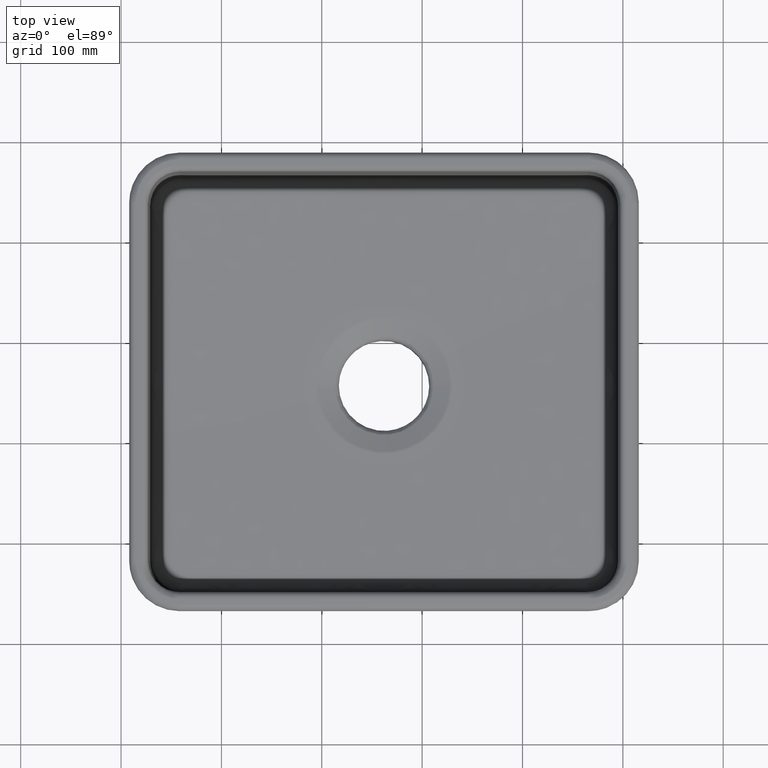
[diagram: clean part render]
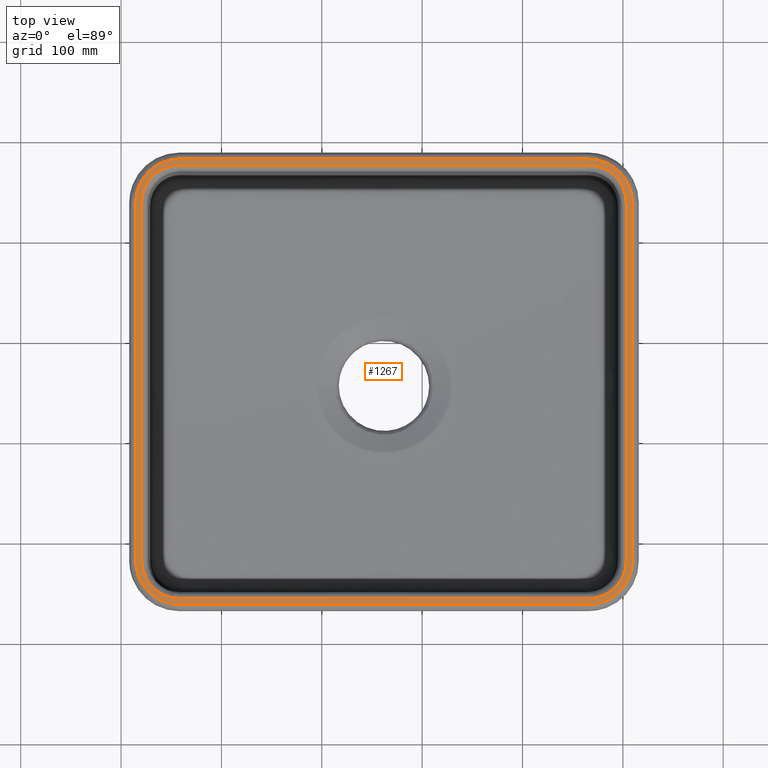
[diagram: same view with one face highlighted and labeled with its STEP entity id]
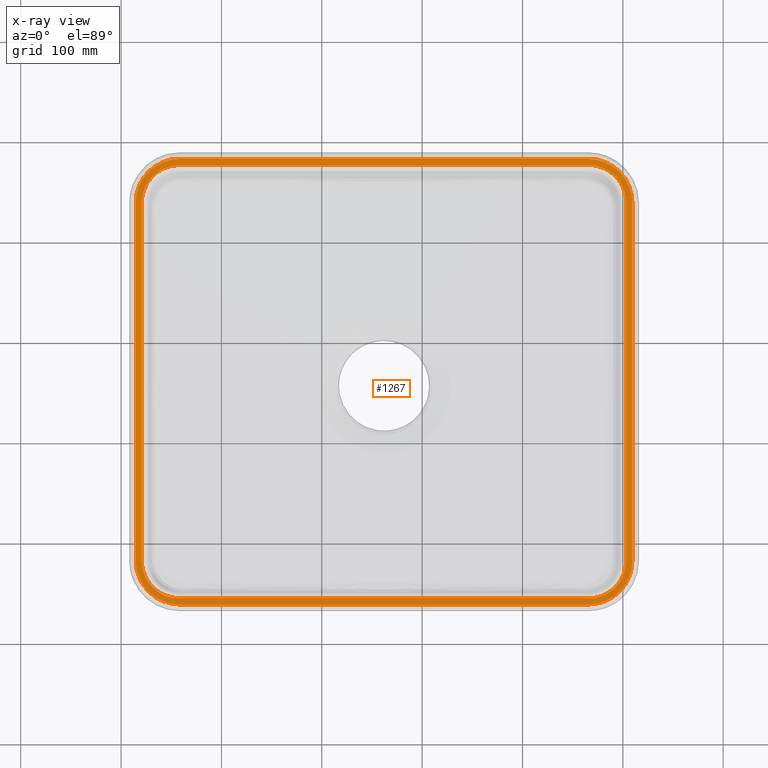
[diagram: x-ray of the same camera — body ghosted, the highlighted face saturated]
A machine part, top view. The second image highlights one B-rep face of the part: STEP entity #1267.
The next image is the same camera in x-ray: the body ghosted, the highlighted face saturated — about 0% of this face is hidden behind the body in this view.
In plain terms, the highlighted planar face has unit normal (0, 0, 1).
Its self-contained STEP definition (entity closure, byte-faithful):
#1267=ADVANCED_FACE('',(#1768,#1769),#1715,.T.);
#1715=PLANE('',#6861);
#1768=FACE_BOUND('',#1782,.T.);
#1769=FACE_BOUND('',#1783,.T.);
#1782=EDGE_LOOP('',(#2822,#2823,#2824,#2825,#2826,#2827,#2828,#2829));
#1783=EDGE_LOOP('',(#2830,#2831,#2832,#2833,#2834,#2835,#2836,#2837));
#2676=ELLIPSE('',#6853,43.5132515307606,43.5);
#2677=ELLIPSE('',#6854,43.5132515307606,43.5);
#2678=ELLIPSE('',#6855,43.5132515307606,43.5);
#2679=ELLIPSE('',#6856,43.5132515307606,43.5);
#2680=ELLIPSE('',#6857,37.5114237334143,37.5);
#2681=ELLIPSE('',#6858,37.5114237334143,37.5);
#2682=ELLIPSE('',#6859,37.5114237334143,37.5);
#2683=ELLIPSE('',#6860,37.5114237334143,37.5);
#2822=ORIENTED_EDGE('',*,*,#5478,.F.);
#2823=ORIENTED_EDGE('',*,*,#5479,.T.);
#2824=ORIENTED_EDGE('',*,*,#5480,.T.);
#2825=ORIENTED_EDGE('',*,*,#5481,.T.);
#2826=ORIENTED_EDGE('',*,*,#5482,.F.);
#2827=ORIENTED_EDGE('',*,*,#5483,.F.);
#2828=ORIENTED_EDGE('',*,*,#5484,.F.);
#2829=ORIENTED_EDGE('',*,*,#5485,.F.);
#2830=ORIENTED_EDGE('',*,*,#5486,.T.);
#2831=ORIENTED_EDGE('',*,*,#5487,.F.);
#2832=ORIENTED_EDGE('',*,*,#5488,.F.);
#2833=ORIENTED_EDGE('',*,*,#5489,.F.);
#2834=ORIENTED_EDGE('',*,*,#5490,.F.);
#2835=ORIENTED_EDGE('',*,*,#5491,.F.);
#2836=ORIENTED_EDGE('',*,*,#5492,.T.);
#2837=ORIENTED_EDGE('',*,*,#5493,.T.);
#4886=VERTEX_POINT('',#8995);
#4887=VERTEX_POINT('',#8996);
#4888=VERTEX_POINT('',#8998);
#4889=VERTEX_POINT('',#9000);
#4890=VERTEX_POINT('',#9002);
#4891=VERTEX_POINT('',#9004);
#4892=VERTEX_POINT('',#9006);
#4893=VERTEX_POINT('',#9008);
#4894=VERTEX_POINT('',#9011);
#4895=VERTEX_POINT('',#9012);
#4896=VERTEX_POINT('',#9014);
#4897=VERTEX_POINT('',#9016);
#4898=VERTEX_POINT('',#9018);
#4899=VERTEX_POINT('',#9020);
#4900=VERTEX_POINT('',#9022);
#4901=VERTEX_POINT('',#9024);
#5478=EDGE_CURVE('',#4886,#4887,#6480,.T.);
#5479=EDGE_CURVE('',#4886,#4888,#2676,.T.);
#5480=EDGE_CURVE('',#4888,#4889,#6481,.T.);
#5481=EDGE_CURVE('',#4889,#4890,#2677,.T.);
#5482=EDGE_CURVE('',#4891,#4890,#6482,.T.);
#5483=EDGE_CURVE('',#4892,#4891,#2678,.T.);
#5484=EDGE_CURVE('',#4893,#4892,#6483,.T.);
#5485=EDGE_CURVE('',#4887,#4893,#2679,.T.);
#5486=EDGE_CURVE('',#4894,#4895,#2680,.T.);
#5487=EDGE_CURVE('',#4896,#4895,#6484,.T.);
#5488=EDGE_CURVE('',#4897,#4896,#2681,.T.);
#5489=EDGE_CURVE('',#4898,#4897,#6485,.T.);
#5490=EDGE_CURVE('',#4899,#4898,#2682,.T.);
#5491=EDGE_CURVE('',#4900,#4899,#6486,.T.);
#5492=EDGE_CURVE('',#4900,#4901,#2683,.T.);
#5493=EDGE_CURVE('',#4901,#4894,#6487,.T.);
#6480=LINE('',#8994,#6675);
#6481=LINE('',#8999,#6676);
#6482=LINE('',#9003,#6677);
#6483=LINE('',#9007,#6678);
#6484=LINE('',#9013,#6679);
#6485=LINE('',#9017,#6680);
#6486=LINE('',#9021,#6681);
#6487=LINE('',#9025,#6682);
#6675=VECTOR('',#7500,1.);
#6676=VECTOR('',#7503,1.);
#6677=VECTOR('',#7506,1.);
#6678=VECTOR('',#7509,1.);
#6679=VECTOR('',#7514,1.);
#6680=VECTOR('',#7517,1.);
#6681=VECTOR('',#7520,1.);
#6682=VECTOR('',#7523,1.);
#6853=AXIS2_PLACEMENT_3D('',#8997,#7501,#7502);
#6854=AXIS2_PLACEMENT_3D('',#9001,#7504,#7505);
#6855=AXIS2_PLACEMENT_3D('',#9005,#7507,#7508);
#6856=AXIS2_PLACEMENT_3D('',#9009,#7510,#7511);
#6857=AXIS2_PLACEMENT_3D('',#9010,#7512,#7513);
#6858=AXIS2_PLACEMENT_3D('',#9015,#7515,#7516);
#6859=AXIS2_PLACEMENT_3D('',#9019,#7518,#7519);
#6860=AXIS2_PLACEMENT_3D('',#9023,#7521,#7522);
#6861=AXIS2_PLACEMENT_3D('',#9026,#7524,#7525);
#7500=DIRECTION('',(0.,1.,0.));
#7501=DIRECTION('',(0.,0.,1.));
#7502=DIRECTION('',(0.707106781186548,0.707106781186548,0.));
#7503=DIRECTION('',(1.,0.,0.));
#7504=DIRECTION('',(0.,0.,1.));
#7505=DIRECTION('',(0.707106781186548,-0.707106781186548,0.));
#7506=DIRECTION('',(0.,-1.,0.));
#7507=DIRECTION('',(0.,0.,-1.));
#7508=DIRECTION('',(0.707106781186548,0.707106781186548,0.));
#7509=DIRECTION('',(1.,0.,0.));
#7510=DIRECTION('',(0.,0.,-1.));
#7511=DIRECTION('',(0.707106781186548,-0.707106781186548,0.));
#7512=DIRECTION('',(0.,0.,-1.));
#7513=DIRECTION('',(0.707106781186548,0.707106781186548,0.));
#7514=DIRECTION('',(0.,-1.,0.));
#7515=DIRECTION('',(0.,0.,1.));
#7516=DIRECTION('',(0.707106781186548,-0.707106781186548,0.));
#7517=DIRECTION('',(-1.,0.,0.));
#7518=DIRECTION('',(0.,0.,1.));
#7519=DIRECTION('',(-0.707106781186548,-0.707106781186548,0.));
#7520=DIRECTION('',(0.,1.,0.));
#7521=DIRECTION('',(0.,0.,-1.));
#7522=DIRECTION('',(-0.707106781186548,0.707106781186548,0.));
#7523=DIRECTION('',(-1.,0.,0.));
#7524=DIRECTION('',(0.,0.,1.));
#7525=DIRECTION('',(1.,0.,0.));
#8994=CARTESIAN_POINT('',(133.613790669334,0.,0.));
#8995=CARTESIAN_POINT('',(133.613790669334,50.1078227936218,0.));
#8996=CARTESIAN_POINT('',(133.613790669334,407.092177206378,0.));
#8997=CARTESIAN_POINT('',(177.120416939244,50.1210743242288,0.));
#8998=CARTESIAN_POINT('',(177.107165408637,6.61444805431881,0.));
#8999=CARTESIAN_POINT('',(585.008272627165,6.61444805431882,0.));
#9000=CARTESIAN_POINT('',(584.892834591363,6.61444805431882,0.));
#9001=CARTESIAN_POINT('',(584.879583060756,50.1210743242288,0.));
#9002=CARTESIAN_POINT('',(628.386209330666,50.1078227936218,0.));
#9003=CARTESIAN_POINT('',(628.386209330666,0.,0.));
#9004=CARTESIAN_POINT('',(628.386209330666,407.092177206378,0.));
#9005=CARTESIAN_POINT('',(584.879583060756,407.078925675771,0.));
#9006=CARTESIAN_POINT('',(584.892834591363,450.585551945681,0.));
#9007=CARTESIAN_POINT('',(585.008272627165,450.585551945681,0.));
#9008=CARTESIAN_POINT('',(177.107165408637,450.585551945681,0.));
#9009=CARTESIAN_POINT('',(177.120416939244,407.078925675771,0.));
#9010=CARTESIAN_POINT('',(177.11752270641,50.1181800913946,0.));
#9011=CARTESIAN_POINT('',(177.106098973128,12.612467789748,0.));
#9012=CARTESIAN_POINT('',(139.611810404763,50.1067563581127,0.));
#9013=CARTESIAN_POINT('',(139.611810404763,0.,0.));
#9014=CARTESIAN_POINT('',(139.611810404763,407.093243641887,0.));
#9015=CARTESIAN_POINT('',(177.11752270641,407.081819908605,0.));
#9016=CARTESIAN_POINT('',(177.106098973128,444.587532210252,0.));
#9017=CARTESIAN_POINT('',(0.,444.587532210252,0.));
#9018=CARTESIAN_POINT('',(584.893901026872,444.587532210252,0.));
#9019=CARTESIAN_POINT('',(584.88247729359,407.081819908606,0.));
#9020=CARTESIAN_POINT('',(622.388189595237,407.093243641887,0.));
#9021=CARTESIAN_POINT('',(622.388189595237,0.,0.));
#9022=CARTESIAN_POINT('',(622.388189595237,50.1067563581126,0.));
#9023=CARTESIAN_POINT('',(584.88247729359,50.1181800913945,0.));
#9024=CARTESIAN_POINT('',(584.893901026872,12.612467789748,0.));
#9025=CARTESIAN_POINT('',(0.,12.612467789748,0.));
#9026=CARTESIAN_POINT('',(0.,0.,0.));